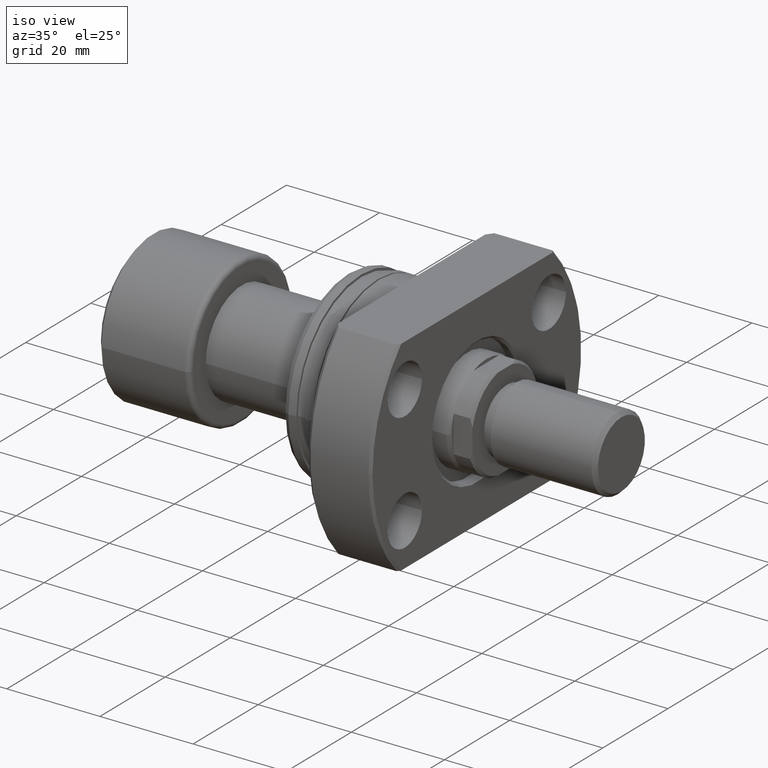
[diagram: clean part render]
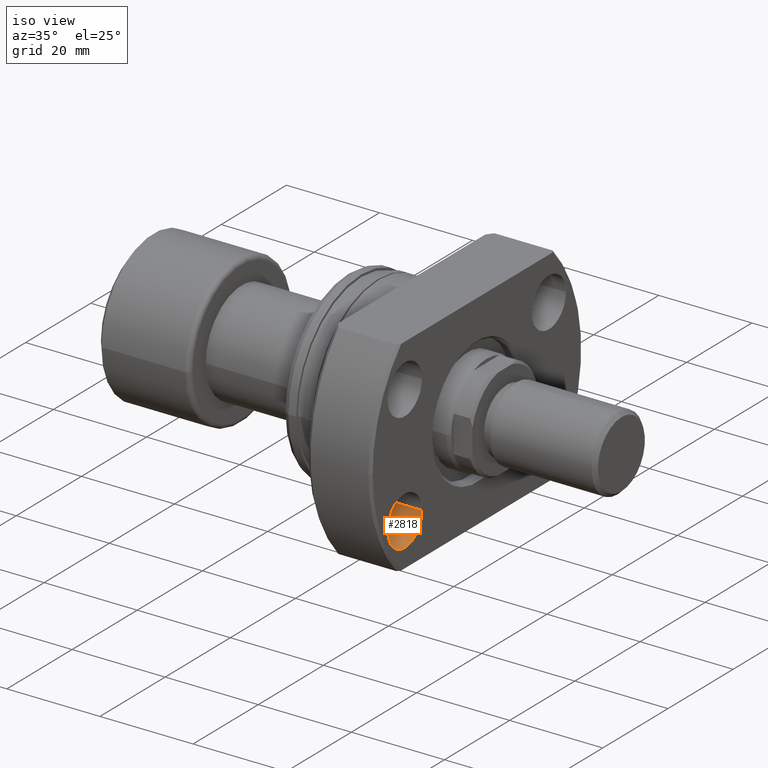
[diagram: same view with one face highlighted and labeled with its STEP entity id]
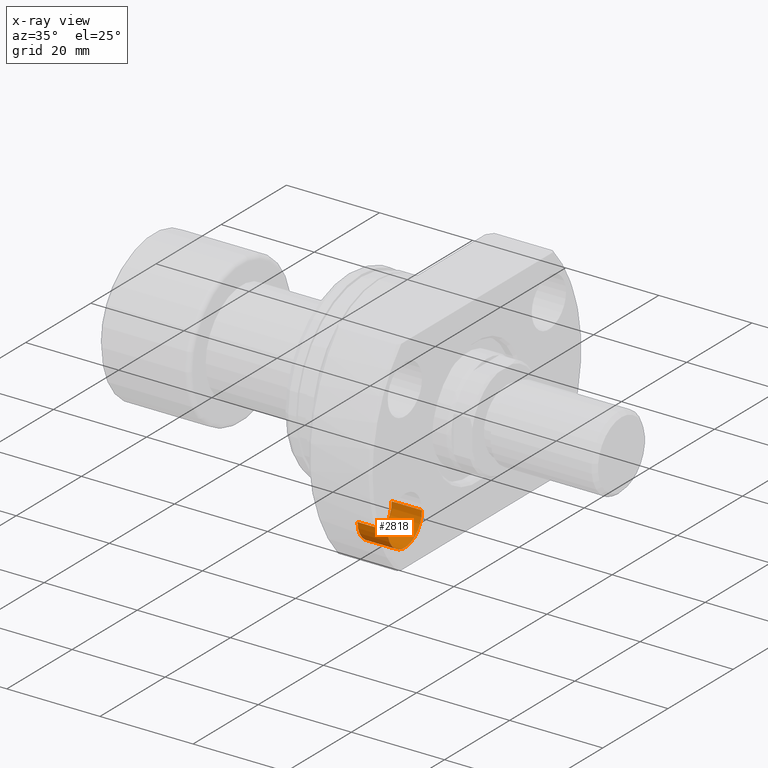
[diagram: x-ray of the same camera — body ghosted, the highlighted face saturated]
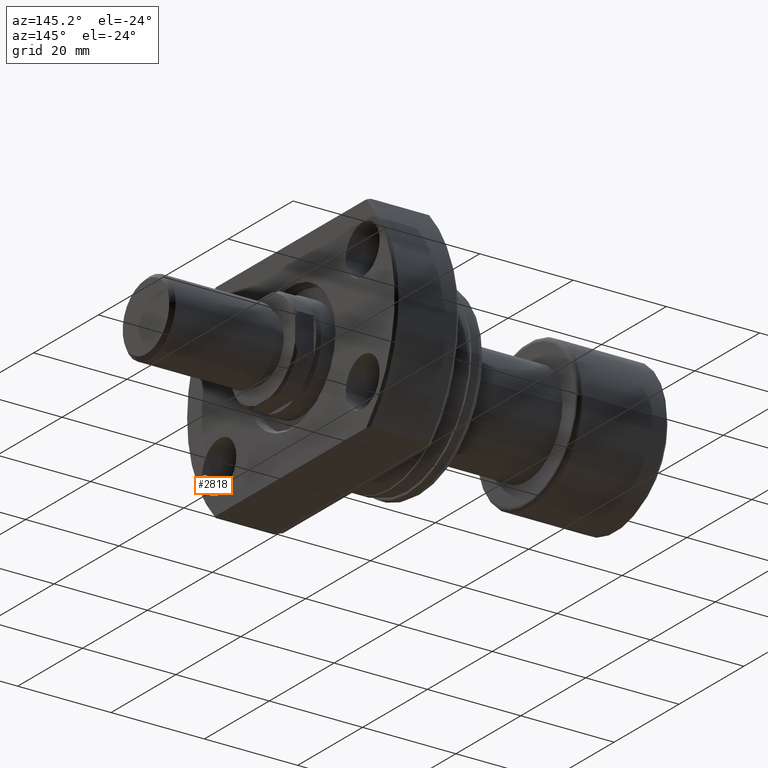
[diagram: same view with one face highlighted and labeled with its STEP entity id]
A machine part, iso view. The second image highlights one B-rep face of the part: STEP entity #2818.
The next image is the same camera in x-ray: the body ghosted, the highlighted face saturated — about 0% of this face is hidden behind the body in this view.
A second angle (auxiliary view) of the same face is appended — the face is thin or edge-on in the first view.
In plain terms, the highlighted cylindrical surface (edge-blend (fillet) strip) has radius 5.25 mm, axis along (1, -0, 0).
Its self-contained STEP definition (entity closure, byte-faithful):
#12 = CARTESIAN_POINT ( 'NONE',  ( 27.49999999999936406, -22.10000000000079368, -12.75000000000000178 ) ) ;
#94 = AXIS2_PLACEMENT_3D ( 'NONE', #1834, #1803, #955 ) ;
#278 = AXIS2_PLACEMENT_3D ( 'NONE', #3163, #1210, #1481 ) ;
#284 = DIRECTION ( 'NONE',  ( 1.000000000000000000, -2.886466111666352516E-14, -0.000000000000000000 ) ) ;
#317 = VERTEX_POINT ( 'NONE', #2265 ) ;
#390 = EDGE_CURVE ( 'NONE', #317, #3265, #1018, .T. ) ;
#433 = ORIENTED_EDGE ( 'NONE', *, *, #390, .T. ) ;
#501 = CARTESIAN_POINT ( 'NONE',  ( 20.99999999999952038, -16.85000000000060538, -12.75000000000000178 ) ) ;
#522 = CARTESIAN_POINT ( 'NONE',  ( 27.49999999999951683, -16.85000000000079012, -12.75000000000000178 ) ) ;
#913 = DIRECTION ( 'NONE',  ( 1.000000000000000000, -2.887798767815668620E-14, -6.310887241768094443E-30 ) ) ;
#923 = EDGE_LOOP ( 'NONE', ( #1190, #1086, #433, #3515 ) ) ;
#955 = DIRECTION ( 'NONE',  ( 2.907726969256361977E-14, 1.000000000000000000, 0.000000000000000000 ) ) ;
#1018 = CIRCLE ( 'NONE', #2475, 5.250000000000000888 ) ;
#1086 = ORIENTED_EDGE ( 'NONE', *, *, #1995, .T. ) ;
#1190 = ORIENTED_EDGE ( 'NONE', *, *, #2485, .F. ) ;
#1210 = DIRECTION ( 'NONE',  ( 1.000000000000000000, -2.886466111666352516E-14, -0.000000000000000000 ) ) ;
#1216 = VERTEX_POINT ( 'NONE', #3397 ) ;
#1481 = DIRECTION ( 'NONE',  ( 2.907726969256361977E-14, 1.000000000000000000, 0.000000000000000000 ) ) ;
#1519 = VERTEX_POINT ( 'NONE', #2341 ) ;
#1803 = DIRECTION ( 'NONE',  ( 1.000000000000000000, -2.887798767815668620E-14, -6.310887241768094443E-30 ) ) ;
#1834 = CARTESIAN_POINT ( 'NONE',  ( 20.99999999999936762, -22.10000000000060538, -12.75000000000000178 ) ) ;
#1905 = LINE ( 'NONE', #501, #3358 ) ;
#1927 = CIRCLE ( 'NONE', #94, 5.250000000000000888 ) ;
#1995 = EDGE_CURVE ( 'NONE', #1519, #317, #3370, .T. ) ;
#2009 = CYLINDRICAL_SURFACE ( 'NONE', #278, 5.250000000000000888 ) ;
#2022 = DIRECTION ( 'NONE',  ( 2.907726969256361977E-14, 1.000000000000000000, 0.000000000000000000 ) ) ;
#2041 = FACE_OUTER_BOUND ( 'NONE', #923, .T. ) ;
#2095 = DIRECTION ( 'NONE',  ( 1.000000000000000000, -2.886466111666352516E-14, -0.000000000000000000 ) ) ;
#2223 = VECTOR ( 'NONE', #284, 1000.000000000000000 ) ;
#2265 = CARTESIAN_POINT ( 'NONE',  ( 27.49999999999921130, -27.35000000000079368, -12.75000000000000178 ) ) ;
#2341 = CARTESIAN_POINT ( 'NONE',  ( 20.99999999999921485, -27.35000000000060538, -12.75000000000000178 ) ) ;
#2434 = EDGE_CURVE ( 'NONE', #1216, #3265, #1905, .T. ) ;
#2475 = AXIS2_PLACEMENT_3D ( 'NONE', #12, #913, #2022 ) ;
#2485 = EDGE_CURVE ( 'NONE', #1519, #1216, #1927, .T. ) ;
#2818 = ADVANCED_FACE ( 'NONE', ( #2041 ), #2009, .F. ) ;
#2836 = CARTESIAN_POINT ( 'NONE',  ( 20.99999999999921485, -27.35000000000060538, -12.75000000000000178 ) ) ;
#3163 = CARTESIAN_POINT ( 'NONE',  ( 20.99999999999936762, -22.10000000000060538, -12.75000000000000178 ) ) ;
#3265 = VERTEX_POINT ( 'NONE', #522 ) ;
#3358 = VECTOR ( 'NONE', #2095, 1000.000000000000000 ) ;
#3370 = LINE ( 'NONE', #2836, #2223 ) ;
#3397 = CARTESIAN_POINT ( 'NONE',  ( 20.99999999999952038, -16.85000000000060538, -12.75000000000000178 ) ) ;
#3515 = ORIENTED_EDGE ( 'NONE', *, *, #2434, .F. ) ;